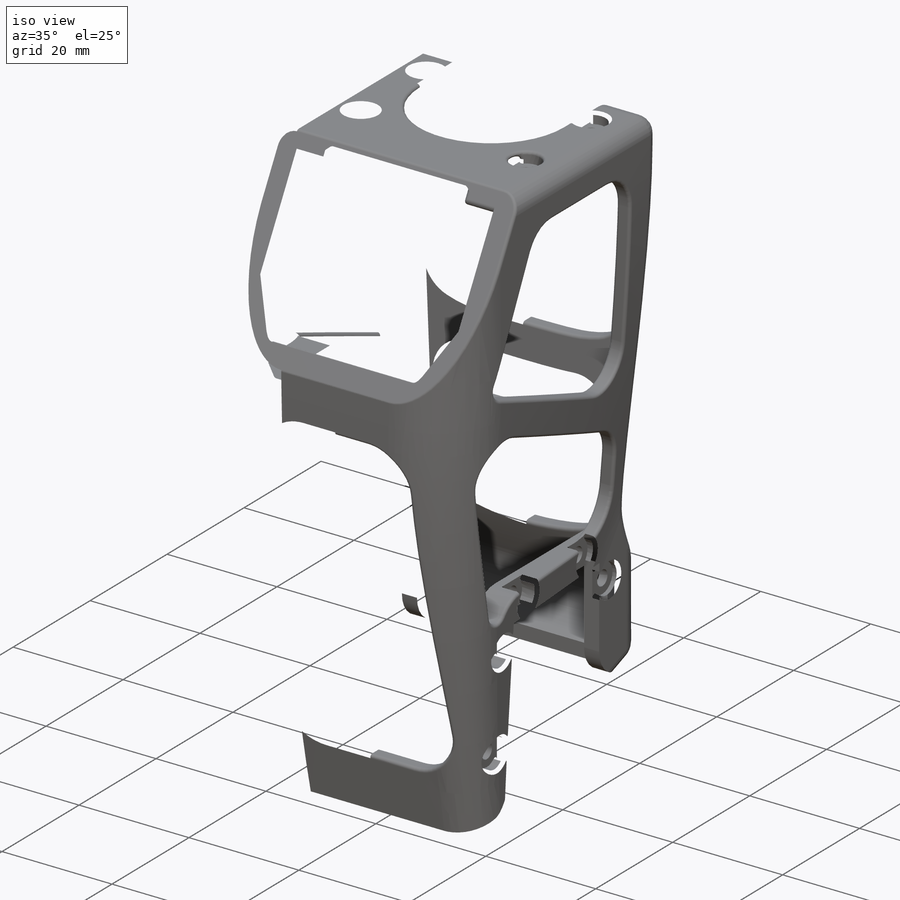
[diagram: iso view]
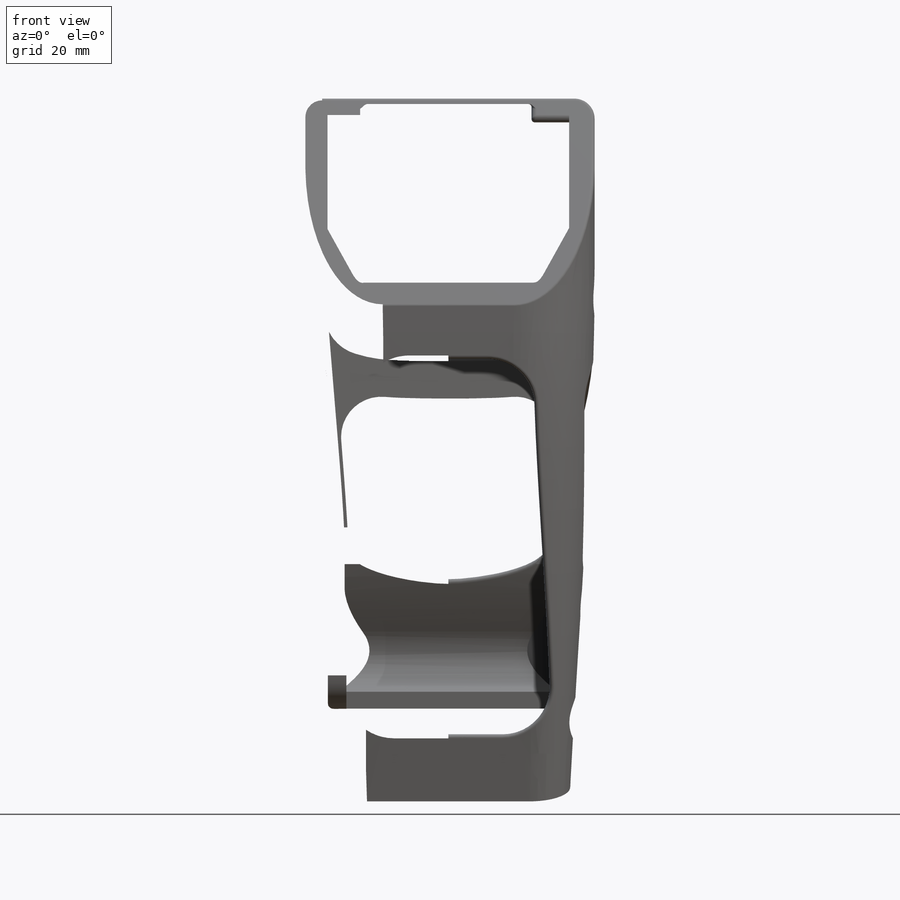
[diagram: front view]
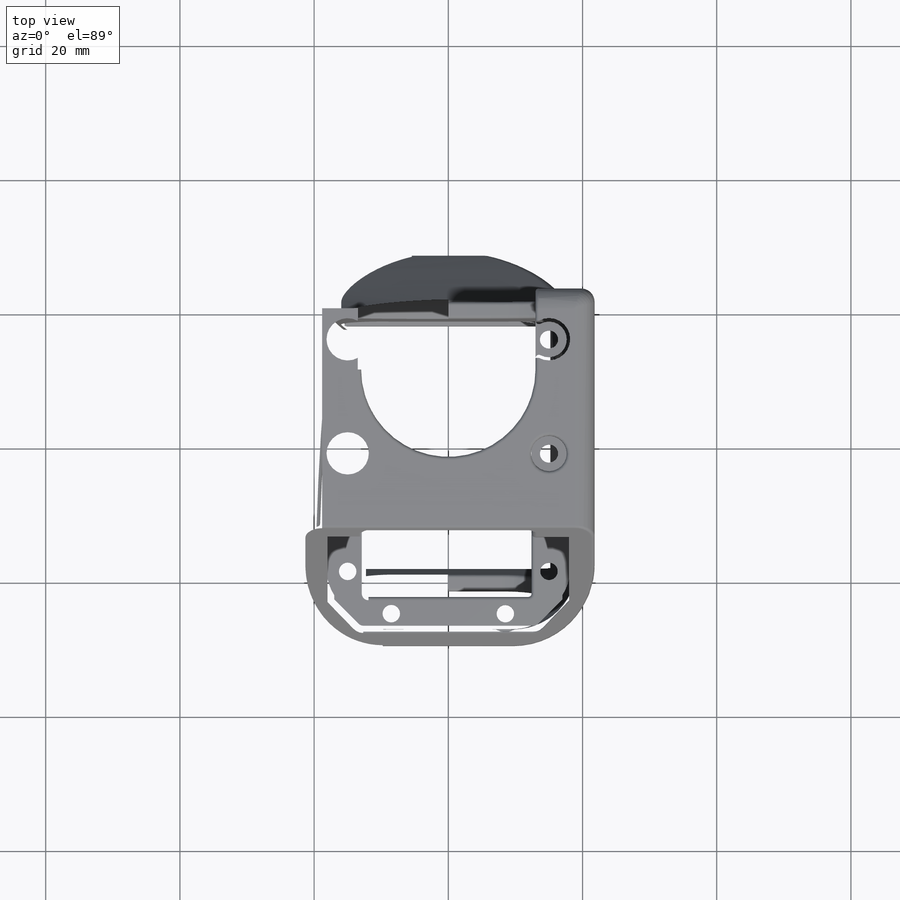
[diagram: top view]
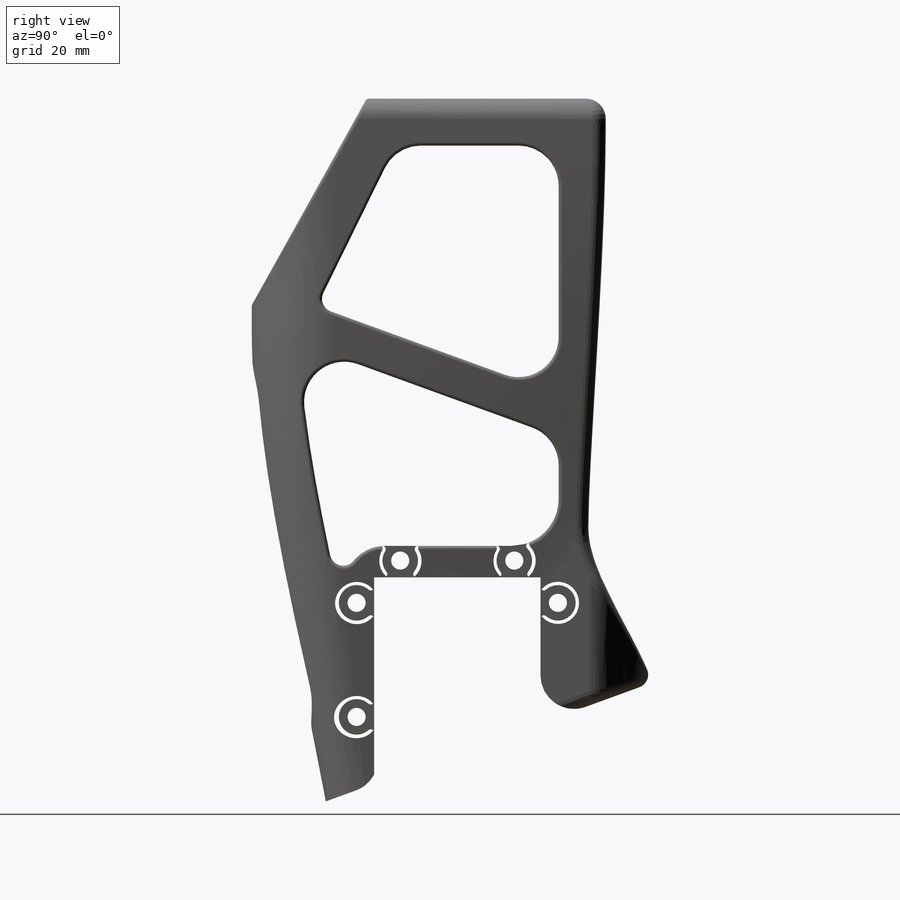
[diagram: right view]
SOLIDWORKS PART (.sldprt)
format: sldprt  version: not decoded by parser v0  size: 3,520,000 bytes
history: native  units: mm
features: sketch x32, fillet x22, plane x18, cut_extrude x12, extrude x6, hole x3, material x1, delete_body x1, chamfer x1, shell x1, mirror x1 + 3 further entries (+11 scaffold rows collapsed; 4 parser-record rows omitted)
feature tree (116):
  scaffold x11  (default folders/planes/origin — collapsed)
  material  "Material <not specified>"
  plane  "Plan de face"
  plane  "Plan de dessus"
  plane  "Plan de droite"
  parser-record x4  (decoder bookkeeping rows leaked as tree rows — omitted from the tree; the rows remain in map.json)
  plane  "RotationHorizontal"
  plane  "MX_RotSup"  Offset=5.5mm
  plane  "MX_RotInf"  Offset=30mm
  plane  "middle_arm"
  plane  "elbowExt"  Offset=15mm
  plane  "elbowInt"  Offset=30mm
  plane  "middle_elbow"
  plane  "ref_elbow"
  sketch  "MX28Rot"  dims[c1.D10=2.7mm c1.D13=2.2mm c1.D1=35.6mm c1.D2=50.6mm c1.D3=12.0mm c1.D4=24.4mm c1.D5=44.0mm c1.D6=2.5mm c1.D7=2.5mm c1.D9=6.5mm c1.D11=17.0mm c1.D12=5.5mm c1.D14=10.0mm c2.D9=4.5mm c2.D11=17.0mm c2.D7=15.0mm c2.D12=17.0mm c2.D6=35.8mm c3.D9=4.5mm c3.D13=32.0mm c3.D5=33.0mm c3.D8=4.0]
  sketch  "MX28Rot_offset"  dims[D1=0.3mm D2=0.3mm]
  sketch  "RotationBrasHorizon"  dims[D1=16.0mm D2=22.0mm D3=2.2mm D4=8.0mm D5=8.0]
  sketch  "MX28coude"  dims[c1.D9=2.7mm c1.D12=2.2mm c1.D14=22.0mm c1.D1=35.6mm c1.D2=50.0mm c1.D3=12.0mm c1.D4=24.4mm c1.D5=44.0mm c1.D6=2.5mm c1.D7=2.5mm c1.D8=6.5mm c1.D10=8.0mm c1.D11=5.5mm c1.D13=17.0mm c2.D8=4.5mm c2.D7=15.0mm c2.D11=17.0mm c2.D6=35.8mm c3.D8=4.5mm c3.D5=33.0mm c3.D10=4.0]
  sketch  "MX28elbow_offset"  dims[D1=0.3mm D2=0.3mm]
  plane  "Ax12Rot2"
  sketch  "Esquisse9"  dims[c1.D1=3.0mm c1.D2=15.0mm c2.D1=35.5mm]
  extrude  "MX28_shoulder"  [1 undecoded]
  plane  "AX12Coud2"
  sketch  "Esquisse11"  dims[c1.D1=3.0mm c1.D2=15.0mm c2.D1=35.5mm]
  extrude  "MX28_elbow"  [1 undecoded]
  plane  "Plan7"  Offset=30mm
  "shape"
  plane  "Plan4"
  plane  "Plan5"
  sketch  "Esquisse15"  dims[c1.D1=~65.368188mm c2.D1=~0.893112deg c3.D1=4.0mm c3.D2=32.0mm c4.D2=~179.079784deg c5.D2=2.0mm c5.D3=0.3mm c5.D1=1.0mm]
  plane  "Plan6"
  sketch  "Esquisse16"  dims[c1.D1=0.2mm c1.D2=3.0mm c1.D3=1.0mm c2.D1=1.0mm]
  extrude  "Boss.-Extru.10"  [1 undecoded]
  sketch  "Esquisse15<2>"  dims[D1=1.0mm]
  extrude  "Boss.-Extru.11"  [1 undecoded]
  sketch  "Esquisse16<2>"  dims[D1=50.0mm]
  sketch  "Esquisse17"  dims[c1.D1=22.0mm c1.D4=25.0mm c1.D5=25.0mm c2.D1=~5.826177mm c3.D1=~17.078901deg c4.D1=2.0mm c4.D2=~19.029842mm c5.D2=30.0deg c6.D2=~43.574129mm c7.D2=20.0deg c7.D3=12.0mm c7.D4=4.0mm c7.D5=11.0mm]
  cut_extrude  "Enlèv. mat.-Extru.2"  [1 undecoded]
  sketch  "Esquisse29"  dims[D1=2.0mm]
  cut_extrude  "Enlèv. mat.-Extru.10"  Depth=10mm
  sketch  "Esquisse18"  dims[D3=2.0mm D1=10.0mm D2=0.2mm]
  sketch  "Esquisse19"  dims[D1=0.2mm]
  cut_extrude  "Enlèv. mat.-Extru.3"  [1 undecoded]
  sketch  "Esquisse32"
  cut_extrude  "Enlèv. mat.-Extru.16"  [1 undecoded]
  delete_body  "Corps-Effacer/suppr1"
  sketch  "Esquisse20"
  cut_extrude  "Enlèv. mat.-Extru.4"  [1 undecoded]
  cut_extrude  "Enlèv. mat.-Extru.5"  [1 undecoded]
  sketch  "Esquisse21"
  cut_extrude  "Enlèv. mat.-Extru.6"  [1 undecoded]
  sketch  "Esquisse22"
  cut_extrude  "Enlèv. mat.-Extru.7"  [1 undecoded]
  sketch  "Esquisse26"
  cut_extrude  "Enlèv. mat.-Extru.8"  Depth=40mm
  chamfer  "Chanfrein1"  Distance=4.5mm Angle=45deg
  sketch  "Esquisse27"  dims[c1.D1=7.0mm c1.D0=12.0mm c2.D1=6.0mm]
  fillet  "Congé4"  Radius=2mm
  "mass_reduction"
  shell  "Coque9"  Thickness=2.5mm
  sketch  "Esquisse34"
  extrude  "Boss.-Extru.12"  [1 undecoded]
  sketch  "Esquisse33"  dims[c1.D4=7.0mm c1.D1=~9.379087mm c2.D1=130.0deg c2.D2=6.0mm c2.D3=6.0mm c2.D5=~53.542154mm c3.D5=20.0deg]
  sketch  "Esquisse45"
  extrude  "Boss.-Extru.13"  [1 undecoded]
  cut_extrude  "Enlèv. mat.-Extru.17"  [1 undecoded]
  sketch  "Esquisse35"  dims[c1.D4=~8.028968mm c1.D3=2.0mm c1.D2=6.0mm c2.D4=3.0mm c2.D1=1.0mm c2.D2=4.0mm]
  cut_extrude  "Enlèv. mat.-Extru.19"  [1 undecoded]
  sketch  "Esquisse36"  dims[D1=3.0mm D2=4.0mm D3=10.0mm]
  cut_extrude  "Enlèv. mat.-Extru.20"  [1 undecoded]
  "smooth"
  fillet  "Congé14"  Radius=2mm
  fillet  "Congé16"  Radius=13.5mm
  fillet  "Congé17"  Radius=6mm
  fillet  "Congé18"  Radius=7mm
  fillet  "Congé19"  Radius=5mm
  fillet  "Congé20"  Radius=6mm
  fillet  "Congé13"  Radius=6mm
  fillet  "Congé23"  Radius=0.5mm
  fillet  "Congé52"  Radius=0.5mm
  fillet  "Congé24"  Radius=0.5mm
  fillet  "Congé28"  Radius=3mm
  fillet  "Congé32"  Radius=0.75mm
  fillet  "Congé33"  Radius=2mm
  fillet  "Congé34"  Radius=0.5mm
  fillet  "Congé43"  Radius=0.5mm
  fillet  "Congé53"  Radius=2mm
  fillet  "Congé55"  Radius=0.1mm
  fillet  "Congé57"  Radius=2mm
  plane  "Plan8"  Offset=10mm
  hole  "CBORE for M2.5 Pan Head Machine Screw1"  Diameter=2.7mm Depth=25.944288mm
  sketch  "Esquisse39"
  sketch  "Esquisse38"  dims[hole-wizard template sketch: 42 standard entries collapsed; hole parameters kept: c12.Profondeur du perçage jusqu'au prochain=~25.944288mm c12.Diamètre du chambrage=5.3mm c12.Profondeur du chambrage=8.5mm]
  hole  "CBORE for M2.5 Pan Head Machine Screw2"  Diameter=2.7mm Depth=10mm
  sketch  "Esquisse41"
  sketch  "Esquisse40"  dims[hole-wizard template sketch: 30 standard entries collapsed; hole parameters kept: c8.Diamètre du chambrage=5.3mm c8.Profondeur du chambrage=2.0mm c8.D5=~14.816244mm c8.Angle de pointe=118.0deg]
  hole  "CBORE for M2.5 Pan Head Machine Screw3"  Diameter=2.6mm Depth=36.700025mm
  sketch  "Esquisse43"
  sketch  "Esquisse42"  dims[hole-wizard template sketch: 41 standard entries collapsed; hole parameters kept: c12.Diamètre du perçage jusqu'au prochain=2.6mm c12.Profondeur du perçage jusqu'au prochain=~36.700025mm c12.Diamètre du chambrage=5.4mm c12.Profondeur du chambrage=1.2mm]
  fillet  "Congé56"  Radius=1mm
  fillet  "Fillet2"  Radius=0.5mm
  mirror  "Symétrie1"
  fillet  "Congé58"  Radius=1mm
decode coverage: 51 of 79 modeling features carry decoded parameters; 3 rows unclassified (native names shown)
note: ~ marks probable driven/reference dimensions
note: 16 parameter values undecoded
summary: no parameter record found for 16 features
note: suppression state not decoded; provenance and decode notes live in map.json
